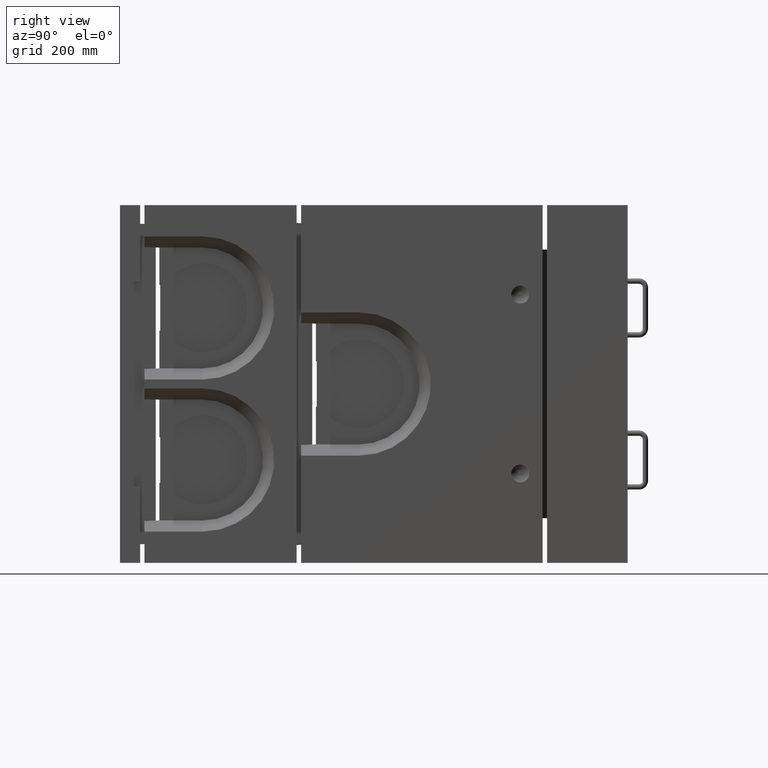
[diagram: clean part render]
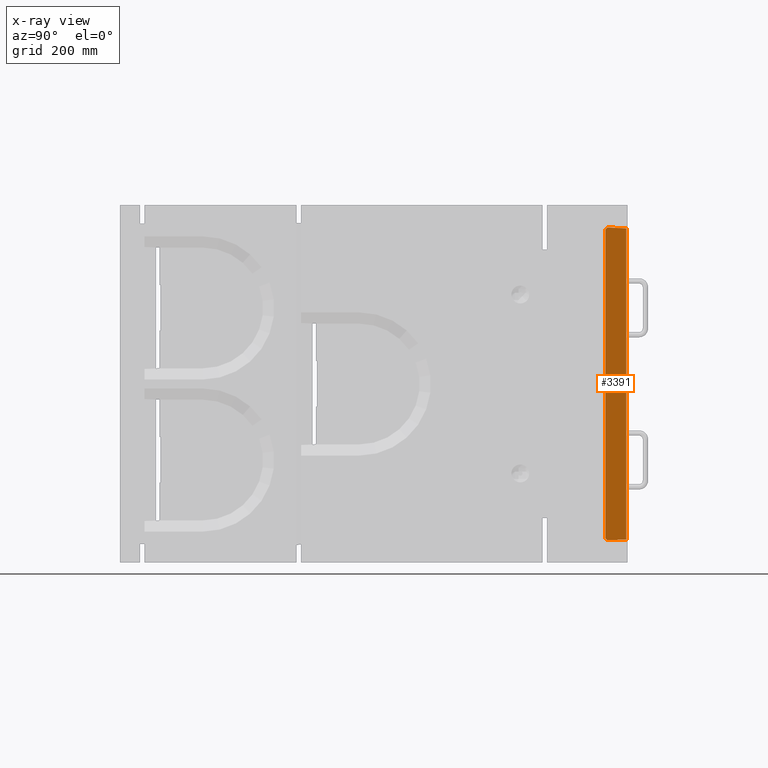
[diagram: x-ray — body ghosted, one internal face saturated and labeled with its STEP entity id]
A machine part, right view, then the same camera in x-ray: the body is ghosted and one INTERNAL B-rep face — a face not visible from any outside direction — is saturated and labeled: STEP entity #3391.
In plain terms, the highlighted planar face has unit normal (0.9988, -0.0499, 0).
Its self-contained STEP definition (entity closure, byte-faithful):
#852 = VERTEX_POINT ( 'NONE', #11511 ) ;
#1781 = CARTESIAN_POINT ( 'NONE',  ( -348.7587064676615682, 1119.825870646766361, -348.2587064676616819 ) ) ;
#2328 = VECTOR ( 'NONE', #12662, 1000.000000000000227 ) ;
#2384 = EDGE_CURVE ( 'NONE', #16738, #27043, #27873, .T. ) ;
#2387 = ORIENTED_EDGE ( 'NONE', *, *, #9272, .F. ) ;
#2994 = LINE ( 'NONE', #3004, #2328 ) ;
#3004 = CARTESIAN_POINT ( 'NONE',  ( -350.4999999999998295, 1085.000000000000000, 350.0000000000000000 ) ) ;
#3310 = CARTESIAN_POINT ( 'NONE',  ( -348.1578947368420245, 1131.842105263158146, 347.6578947368420813 ) ) ;
#3391 = ADVANCED_FACE ( 'NONE', ( #18306 ), #17866, .F. ) ;
#3873 = VECTOR ( 'NONE', #8514, 1000.000000000000227 ) ;
#4377 = CARTESIAN_POINT ( 'NONE',  ( -348.1578947368420245, 1131.842105263158146, -347.6578947368420813 ) ) ;
#4501 = LINE ( 'NONE', #1781, #3873 ) ;
#4670 = DIRECTION ( 'NONE',  ( 0.04993761694389167727, 0.9987523388778446476, 0.000000000000000000 ) ) ;
#5454 = VECTOR ( 'NONE', #19174, 1000.000000000000114 ) ;
#5815 = LINE ( 'NONE', #17041, #5454 ) ;
#5929 = CARTESIAN_POINT ( 'NONE',  ( -350.4999999999998295, 1085.000000000000000, 345.0000000000002842 ) ) ;
#6082 = CARTESIAN_POINT ( 'NONE',  ( -350.2619047619045887, 1089.761904761904816, 349.7619047619047024 ) ) ;
#6360 = VECTOR ( 'NONE', #16279, 1000.000000000000000 ) ;
#6595 = VERTEX_POINT ( 'NONE', #20902 ) ;
#6601 = VECTOR ( 'NONE', #17181, 1000.000000000000000 ) ;
#6617 = CARTESIAN_POINT ( 'NONE',  ( -348.1578947368420245, 1131.842105263158146, 350.0000000000000000 ) ) ;
#8360 = ORIENTED_EDGE ( 'NONE', *, *, #20998, .T. ) ;
#8514 = DIRECTION ( 'NONE',  ( -0.04987546680538108151, -0.9975093361076328158, -0.04987546680538171989 ) ) ;
#9272 = EDGE_CURVE ( 'NONE', #16738, #6595, #23909, .T. ) ;
#11153 = VERTEX_POINT ( 'NONE', #3310 ) ;
#11511 = CARTESIAN_POINT ( 'NONE',  ( -350.2503119152804061, 1089.993761694389150, -349.7503119152805198 ) ) ;
#12662 = DIRECTION ( 'NONE',  ( 0.04987546680538108151, 0.9975093361076328158, -0.04987546680538171989 ) ) ;
#14369 = EDGE_CURVE ( 'NONE', #852, #6595, #5815, .T. ) ;
#15425 = DIRECTION ( 'NONE',  ( 0.9987523388778447586, -0.04993761694389168421, 0.000000000000000000 ) ) ;
#16279 = DIRECTION ( 'NONE',  ( 0.000000000000000000, -0.000000000000000000, -1.000000000000000000 ) ) ;
#16300 = DIRECTION ( 'NONE',  ( 0.03533326266687891737, 0.7066652533375861189, 0.7066652533375604728 ) ) ;
#16738 = VERTEX_POINT ( 'NONE', #5929 ) ;
#17041 = CARTESIAN_POINT ( 'NONE',  ( -350.0195196130006821, 1094.609607739983403, -353.9265535755801011 ) ) ;
#17069 = ORIENTED_EDGE ( 'NONE', *, *, #18247, .T. ) ;
#17181 = DIRECTION ( 'NONE',  ( 0.000000000000000000, 0.000000000000000000, -1.000000000000000000 ) ) ;
#17185 = VERTEX_POINT ( 'NONE', #4377 ) ;
#17495 = ORIENTED_EDGE ( 'NONE', *, *, #2384, .T. ) ;
#17772 = CARTESIAN_POINT ( 'NONE',  ( -350.4999999999998295, 1085.000000000000000, 350.0000000000000000 ) ) ;
#17866 = PLANE ( 'NONE',  #27014 ) ;
#18157 = CARTESIAN_POINT ( 'NONE',  ( -350.4999999999998295, 1085.000000000000000, 350.0000000000000000 ) ) ;
#18247 = EDGE_CURVE ( 'NONE', #11153, #17185, #21752, .T. ) ;
#18306 = FACE_OUTER_BOUND ( 'NONE', #27426, .T. ) ;
#18567 = CARTESIAN_POINT ( 'NONE',  ( -349.7940372153854014, 1099.119255692289471, 359.1192556922893004 ) ) ;
#19174 = DIRECTION ( 'NONE',  ( -0.03705133068746531422, -0.7410266137493145555, 0.6704526505350785204 ) ) ;
#19668 = VECTOR ( 'NONE', #16300, 1000.000000000000000 ) ;
#20902 = CARTESIAN_POINT ( 'NONE',  ( -350.4999999999998295, 1085.000000000000000, -345.2321465727381451 ) ) ;
#20998 = EDGE_CURVE ( 'NONE', #17185, #852, #4501, .T. ) ;
#21752 = LINE ( 'NONE', #6617, #6601 ) ;
#22410 = ORIENTED_EDGE ( 'NONE', *, *, #14369, .T. ) ;
#23909 = LINE ( 'NONE', #18157, #6360 ) ;
#24293 = ORIENTED_EDGE ( 'NONE', *, *, #24991, .T. ) ;
#24991 = EDGE_CURVE ( 'NONE', #27043, #11153, #2994, .T. ) ;
#27014 = AXIS2_PLACEMENT_3D ( 'NONE', #17772, #15425, #4670 ) ;
#27043 = VERTEX_POINT ( 'NONE', #6082 ) ;
#27426 = EDGE_LOOP ( 'NONE', ( #2387, #17495, #24293, #17069, #8360, #22410 ) ) ;
#27873 = LINE ( 'NONE', #18567, #19668 ) ;